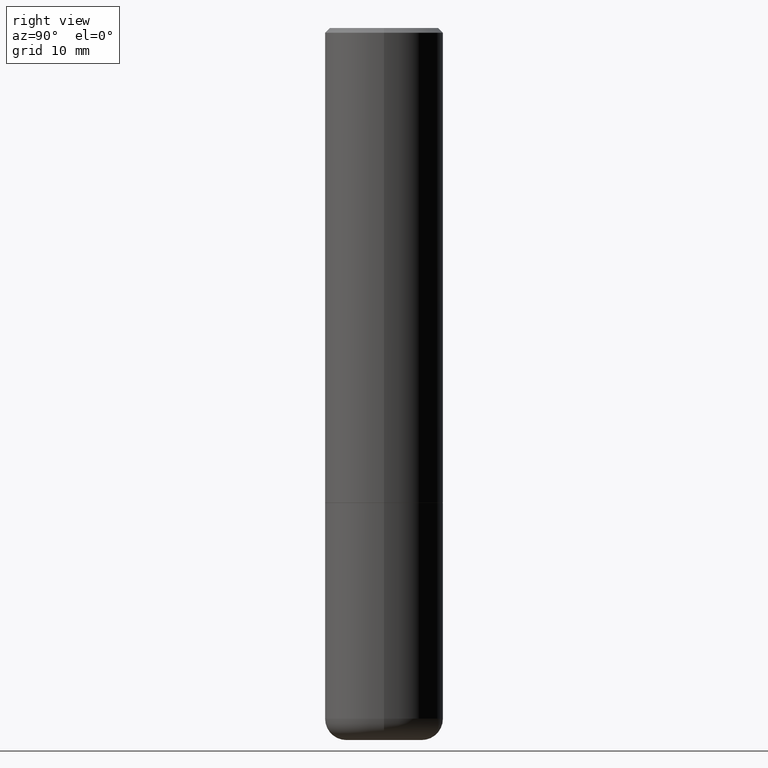
[diagram: clean part render]
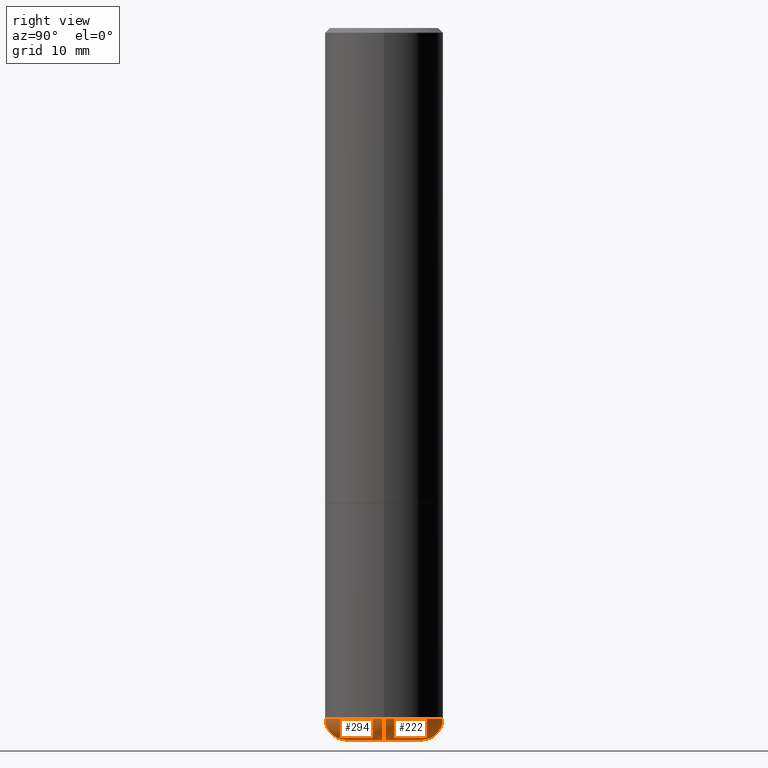
[diagram: same view with one multi-face feature highlighted, each face labeled with its STEP entity id]
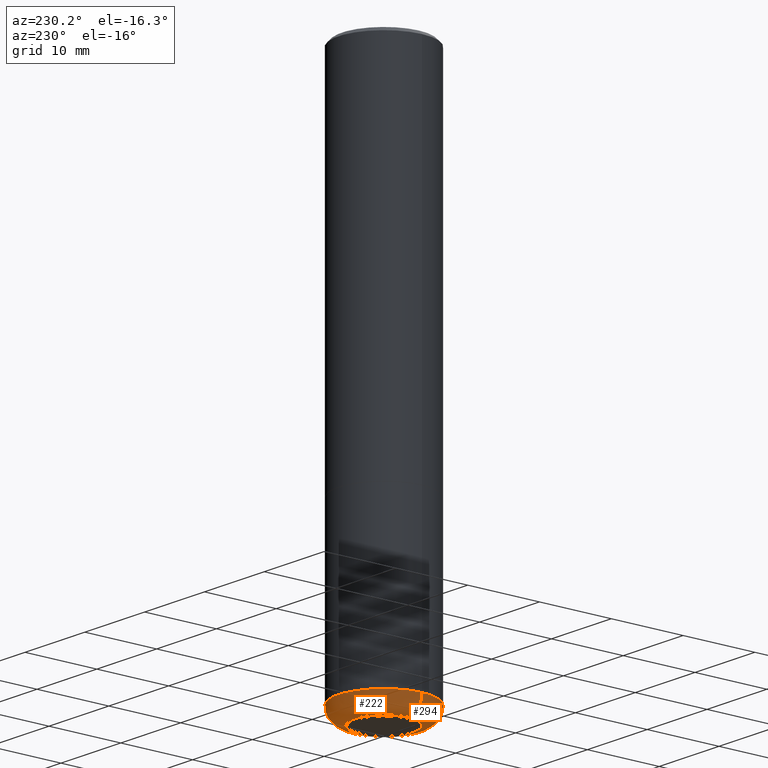
[diagram: same view with one multi-face feature highlighted, each face labeled with its STEP entity id]
A machine part, right view. The highlighted faces form ONE feature: a constant-radius fillet chain: 2 tangent blend faces with common blend radius 2.286 mm. The faces share edges in the B-rep.
A second angle (auxiliary view) of the same feature is appended — it is thin or edge-on in the first view.
Their STEP definitions:
[1] entity #294 (Torus):
#24 = ORIENTED_EDGE ( 'NONE', *, *, #362, .T. ) ;
#27 = EDGE_CURVE ( 'NONE', #168, #216, #34, .T. ) ;
#34 = CIRCLE ( 'NONE', #187, 0.08999999999999964972 ) ;
#75 = CARTESIAN_POINT ( 'NONE',  ( 7.116314225998749245E-29, -1.016021069603355467E-14, -2.910000000000000586 ) ) ;
#86 = DIRECTION ( 'NONE',  ( -2.445468806185136597E-29, 3.491481338843145583E-15, 1.000000000000000000 ) ) ;
#99 = EDGE_CURVE ( 'NONE', #263, #280, #395, .T. ) ;
#117 = ORIENTED_EDGE ( 'NONE', *, *, #257, .F. ) ;
#118 = AXIS2_PLACEMENT_3D ( 'NONE', #239, #214, #209 ) ;
#130 = DIRECTION ( 'NONE',  ( 1.000000000000000000, -6.982962677686270655E-15, 0.000000000000000000 ) ) ;
#140 = EDGE_LOOP ( 'NONE', ( #157, #24, #237, #117 ) ) ;
#142 = FACE_OUTER_BOUND ( 'NONE', #140, .T. ) ;
#143 = CIRCLE ( 'NONE', #118, 0.1600000000000000033 ) ;
#145 = DIRECTION ( 'NONE',  ( 1.000000000000000000, -6.982962677686265133E-15, 4.883557194083112340E-29 ) ) ;
#157 = ORIENTED_EDGE ( 'NONE', *, *, #99, .F. ) ;
#167 = TOROIDAL_SURFACE ( 'NONE', #269, 0.1600000000000000033, 0.08999999999999964972 ) ;
#168 = VERTEX_POINT ( 'NONE', #251 ) ;
#173 = CARTESIAN_POINT ( 'NONE',  ( 0.2499999999999998335, -1.190595136545512292E-14, -2.910000000000000586 ) ) ;
#186 = AXIS2_PLACEMENT_3D ( 'NONE', #75, #344, #130 ) ;
#187 = AXIS2_PLACEMENT_3D ( 'NONE', #413, #371, #340 ) ;
#203 = CARTESIAN_POINT ( 'NONE',  ( -0.1600000000000000033, -8.860714747973291991E-15, -2.999999999999999556 ) ) ;
#209 = DIRECTION ( 'NONE',  ( 1.000000000000000000, -6.982962677686271444E-15, 0.000000000000000000 ) ) ;
#214 = DIRECTION ( 'NONE',  ( -2.445468806185136597E-29, 3.491481338843145583E-15, 1.000000000000000000 ) ) ;
#216 = VERTEX_POINT ( 'NONE', #173 ) ;
#237 = ORIENTED_EDGE ( 'NONE', *, *, #27, .T. ) ;
#239 = CARTESIAN_POINT ( 'NONE',  ( 7.336406418555408669E-29, -1.047444401652943478E-14, -2.999999999999999556 ) ) ;
#251 = CARTESIAN_POINT ( 'NONE',  ( 0.1600000000000000033, -1.159171804495923808E-14, -2.999999999999999556 ) ) ;
#257 = EDGE_CURVE ( 'NONE', #280, #216, #336, .T. ) ;
#259 = AXIS2_PLACEMENT_3D ( 'NONE', #369, #333, #364 ) ;
#263 = VERTEX_POINT ( 'NONE', #203 ) ;
#269 = AXIS2_PLACEMENT_3D ( 'NONE', #377, #86, #145 ) ;
#280 = VERTEX_POINT ( 'NONE', #403 ) ;
#294 = ADVANCED_FACE ( 'NONE', ( #142 ), #167, .T. ) ;
#333 = DIRECTION ( 'NONE',  ( 7.105427357601001859E-15, 1.000000000000000000, -3.491481338843145583E-15 ) ) ;
#336 = CIRCLE ( 'NONE', #186, 0.2500000000000000000 ) ;
#340 = DIRECTION ( 'NONE',  ( 1.000000000000000000, -6.982962677686273810E-15, 0.000000000000000000 ) ) ;
#344 = DIRECTION ( 'NONE',  ( -2.445468806185136597E-29, 3.491481338843145583E-15, 1.000000000000000000 ) ) ;
#362 = EDGE_CURVE ( 'NONE', #263, #168, #143, .T. ) ;
#364 = DIRECTION ( 'NONE',  ( -1.000000000000000000, 7.105427357600996337E-15, 0.000000000000000000 ) ) ;
#369 = CARTESIAN_POINT ( 'NONE',  ( -0.1600000000000000033, -9.023342318817394938E-15, -2.910000000000000586 ) ) ;
#371 = DIRECTION ( 'NONE',  ( -6.982962677686266711E-15, -1.000000000000000000, 3.491481338843145583E-15 ) ) ;
#377 = CARTESIAN_POINT ( 'NONE',  ( 7.116314225998749245E-29, -1.016021069603355467E-14, -2.910000000000000586 ) ) ;
#395 = CIRCLE ( 'NONE', #259, 0.08999999999999964972 ) ;
#403 = CARTESIAN_POINT ( 'NONE',  ( -0.2499999999999998335, -8.383853856633305780E-15, -2.910000000000000586 ) ) ;
#413 = CARTESIAN_POINT ( 'NONE',  ( 0.1600000000000000033, -1.127748472446335797E-14, -2.910000000000000586 ) ) ;
[2] entity #222 (Torus):
#4 = AXIS2_PLACEMENT_3D ( 'NONE', #74, #37, #98 ) ;
#20 = EDGE_LOOP ( 'NONE', ( #380, #202, #405, #44 ) ) ;
#27 = EDGE_CURVE ( 'NONE', #168, #216, #34, .T. ) ;
#34 = CIRCLE ( 'NONE', #187, 0.08999999999999964972 ) ;
#37 = DIRECTION ( 'NONE',  ( -2.445468806185136597E-29, 3.491481338843145583E-15, 1.000000000000000000 ) ) ;
#38 = FACE_OUTER_BOUND ( 'NONE', #20, .T. ) ;
#40 = CIRCLE ( 'NONE', #175, 0.2500000000000000000 ) ;
#44 = ORIENTED_EDGE ( 'NONE', *, *, #27, .F. ) ;
#50 = DIRECTION ( 'NONE',  ( -2.445468806185136597E-29, 3.491481338843145583E-15, 1.000000000000000000 ) ) ;
#55 = CIRCLE ( 'NONE', #401, 0.1600000000000000033 ) ;
#60 = CARTESIAN_POINT ( 'NONE',  ( 7.116314225998749245E-29, -1.016021069603355467E-14, -2.910000000000000586 ) ) ;
#74 = CARTESIAN_POINT ( 'NONE',  ( 7.116314225998749245E-29, -1.016021069603355467E-14, -2.910000000000000586 ) ) ;
#98 = DIRECTION ( 'NONE',  ( 1.000000000000000000, -6.982962677686265133E-15, 4.883557194083112340E-29 ) ) ;
#99 = EDGE_CURVE ( 'NONE', #263, #280, #395, .T. ) ;
#112 = CARTESIAN_POINT ( 'NONE',  ( 7.336406418555408669E-29, -1.047444401652943478E-14, -2.999999999999999556 ) ) ;
#133 = DIRECTION ( 'NONE',  ( -2.445468806185136597E-29, 3.491481338843145583E-15, 1.000000000000000000 ) ) ;
#168 = VERTEX_POINT ( 'NONE', #251 ) ;
#173 = CARTESIAN_POINT ( 'NONE',  ( 0.2499999999999998335, -1.190595136545512292E-14, -2.910000000000000586 ) ) ;
#175 = AXIS2_PLACEMENT_3D ( 'NONE', #60, #133, #184 ) ;
#183 = DIRECTION ( 'NONE',  ( 1.000000000000000000, -6.982962677686271444E-15, 0.000000000000000000 ) ) ;
#184 = DIRECTION ( 'NONE',  ( 1.000000000000000000, -6.982962677686270655E-15, 0.000000000000000000 ) ) ;
#187 = AXIS2_PLACEMENT_3D ( 'NONE', #413, #371, #340 ) ;
#200 = TOROIDAL_SURFACE ( 'NONE', #4, 0.1600000000000000033, 0.08999999999999964972 ) ;
#202 = ORIENTED_EDGE ( 'NONE', *, *, #99, .T. ) ;
#203 = CARTESIAN_POINT ( 'NONE',  ( -0.1600000000000000033, -8.860714747973291991E-15, -2.999999999999999556 ) ) ;
#216 = VERTEX_POINT ( 'NONE', #173 ) ;
#222 = ADVANCED_FACE ( 'NONE', ( #38 ), #200, .T. ) ;
#251 = CARTESIAN_POINT ( 'NONE',  ( 0.1600000000000000033, -1.159171804495923808E-14, -2.999999999999999556 ) ) ;
#259 = AXIS2_PLACEMENT_3D ( 'NONE', #369, #333, #364 ) ;
#263 = VERTEX_POINT ( 'NONE', #203 ) ;
#280 = VERTEX_POINT ( 'NONE', #403 ) ;
#318 = EDGE_CURVE ( 'NONE', #168, #263, #55, .T. ) ;
#333 = DIRECTION ( 'NONE',  ( 7.105427357601001859E-15, 1.000000000000000000, -3.491481338843145583E-15 ) ) ;
#340 = DIRECTION ( 'NONE',  ( 1.000000000000000000, -6.982962677686273810E-15, 0.000000000000000000 ) ) ;
#364 = DIRECTION ( 'NONE',  ( -1.000000000000000000, 7.105427357600996337E-15, 0.000000000000000000 ) ) ;
#369 = CARTESIAN_POINT ( 'NONE',  ( -0.1600000000000000033, -9.023342318817394938E-15, -2.910000000000000586 ) ) ;
#371 = DIRECTION ( 'NONE',  ( -6.982962677686266711E-15, -1.000000000000000000, 3.491481338843145583E-15 ) ) ;
#380 = ORIENTED_EDGE ( 'NONE', *, *, #318, .T. ) ;
#395 = CIRCLE ( 'NONE', #259, 0.08999999999999964972 ) ;
#399 = EDGE_CURVE ( 'NONE', #216, #280, #40, .T. ) ;
#401 = AXIS2_PLACEMENT_3D ( 'NONE', #112, #50, #183 ) ;
#403 = CARTESIAN_POINT ( 'NONE',  ( -0.2499999999999998335, -8.383853856633305780E-15, -2.910000000000000586 ) ) ;
#405 = ORIENTED_EDGE ( 'NONE', *, *, #399, .F. ) ;
#413 = CARTESIAN_POINT ( 'NONE',  ( 0.1600000000000000033, -1.127748472446335797E-14, -2.910000000000000586 ) ) ;